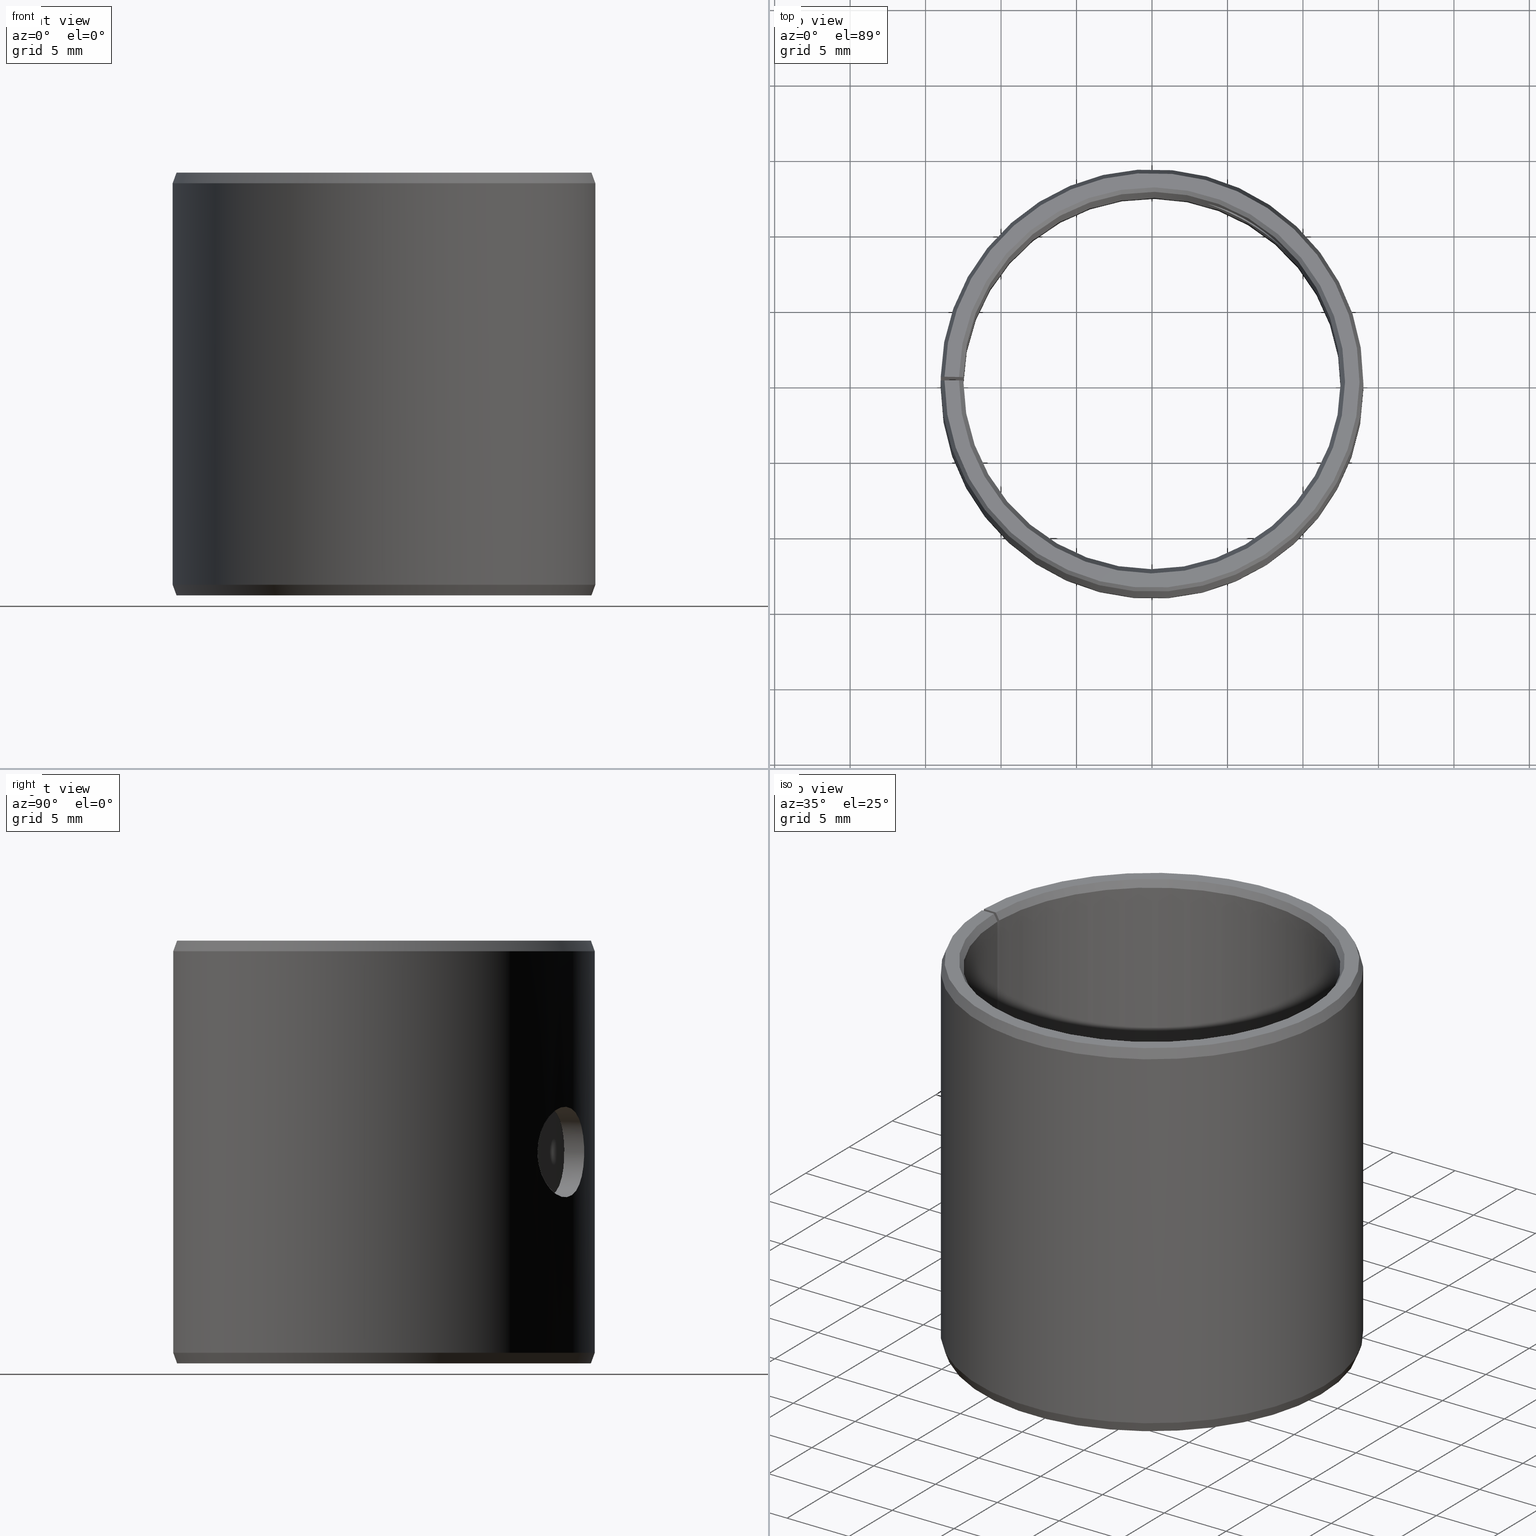
[diagram: canonical four-view strip — front | top / right | iso, engineering-drawing reading convention]
A machine part, canonical four-view strip (front | top / right | iso — engineering-drawing reading convention). The complete STEP part file that produces these views, byte-faithful:
ISO-10303-21;
HEADER;
FILE_DESCRIPTION(('STEP AP203'),'1');
FILE_NAME('440-POM2528LMB.stp','2016-09-21T04:35:09',(' '),(' '),'Spatial InterOp 3D',' ',' ');
FILE_SCHEMA(('CONFIG_CONTROL_DESIGN'));
ENDSEC;
DATA;
#1=DESIGN_CONTEXT('',#51,'design');
#2=APPLICATION_PROTOCOL_DEFINITION('INTERNATIONAL STANDARD','config_control_design',1994,#51);
#3=PRODUCT_CATEGORY_RELATIONSHIP('NONE','NONE',#52,#53);
#4=DATE_AND_TIME(#54,#55);
#5=DATE_TIME_ROLE('creation_date');
#6=DATE_TIME_ROLE('classification_date');
#7=PERSON_AND_ORGANIZATION_ROLE('creator');
#8=PERSON_AND_ORGANIZATION_ROLE('design_supplier');
#9=PERSON_AND_ORGANIZATION_ROLE('classification_officer');
#10=PERSON_AND_ORGANIZATION_ROLE('design_owner');
#11=APPROVAL_PERSON_ORGANIZATION(#56,#57,#58);
#12=APPROVAL_DATE_TIME(#4,#57);
#13=CC_DESIGN_APPROVAL(#57,(#59,#60,#61));
#14=CC_DESIGN_DATE_AND_TIME_ASSIGNMENT(#4,#5,(#61));
#15=CC_DESIGN_DATE_AND_TIME_ASSIGNMENT(#4,#6,(#59));
#16=CC_DESIGN_PERSON_AND_ORGANIZATION_ASSIGNMENT(#56,#10,(#62));
#17=CC_DESIGN_PERSON_AND_ORGANIZATION_ASSIGNMENT(#56,#7,(#61));
#18=CC_DESIGN_PERSON_AND_ORGANIZATION_ASSIGNMENT(#56,#7,(#60));
#19=CC_DESIGN_PERSON_AND_ORGANIZATION_ASSIGNMENT(#56,#8,(#60));
#20=CC_DESIGN_SECURITY_CLASSIFICATION(#59,(#60));
#21=CC_DESIGN_PERSON_AND_ORGANIZATION_ASSIGNMENT(#56,#9,(#59));
#22=SHAPE_DEFINITION_REPRESENTATION(#63,#64);
#23=DESIGN_CONTEXT('',#65,'design');
#24=APPLICATION_PROTOCOL_DEFINITION('INTERNATIONAL STANDARD','config_control_design',1994,#65);
#25=PRODUCT_CATEGORY_RELATIONSHIP('NONE','NONE',#66,#67);
#26=DATE_AND_TIME(#68,#69);
#27=DATE_TIME_ROLE('creation_date');
#28=DATE_TIME_ROLE('classification_date');
#29=PERSON_AND_ORGANIZATION_ROLE('creator');
#30=PERSON_AND_ORGANIZATION_ROLE('design_supplier');
#31=PERSON_AND_ORGANIZATION_ROLE('classification_officer');
#32=PERSON_AND_ORGANIZATION_ROLE('design_owner');
#33=APPROVAL_PERSON_ORGANIZATION(#70,#71,#72);
#34=APPROVAL_DATE_TIME(#26,#71);
#35=CC_DESIGN_APPROVAL(#71,(#73,#74,#75));
#36=CC_DESIGN_DATE_AND_TIME_ASSIGNMENT(#26,#27,(#75));
#37=CC_DESIGN_DATE_AND_TIME_ASSIGNMENT(#26,#28,(#73));
#38=CC_DESIGN_PERSON_AND_ORGANIZATION_ASSIGNMENT(#70,#32,(#76));
#39=CC_DESIGN_PERSON_AND_ORGANIZATION_ASSIGNMENT(#70,#29,(#75));
#40=CC_DESIGN_PERSON_AND_ORGANIZATION_ASSIGNMENT(#70,#29,(#74));
#41=CC_DESIGN_PERSON_AND_ORGANIZATION_ASSIGNMENT(#70,#30,(#74));
#42=CC_DESIGN_SECURITY_CLASSIFICATION(#73,(#74));
#43=CC_DESIGN_PERSON_AND_ORGANIZATION_ASSIGNMENT(#70,#31,(#73));
#44=CONTEXT_DEPENDENT_SHAPE_REPRESENTATION(#77,#78);
#45=SHAPE_DEFINITION_REPRESENTATION(#79,#80);
#46=SHAPE_REPRESENTATION_RELATIONSHIP('NONE','NONE',#80,#81);
#47= (GEOMETRIC_REPRESENTATION_CONTEXT(3)GLOBAL_UNCERTAINTY_ASSIGNED_CONTEXT((#84))GLOBAL_UNIT_ASSIGNED_CONTEXT((#86,#87,#88))REPRESENTATION_CONTEXT('NONE','WORKSPACE'));
#51=APPLICATION_CONTEXT('CONFIGURATION CONTROLLED 3D DESIGNS OF MECHANICAL PARTS AND ASSEMBLIES');
#52=PRODUCT_CATEGORY('part','NONE');
#53=PRODUCT_RELATED_PRODUCT_CATEGORY('detail',' ',(#62));
#54=CALENDAR_DATE(2016,21,8);
#55=LOCAL_TIME(6,35,9.0,#90);
#56=PERSON_AND_ORGANIZATION(#91,#92);
#57=APPROVAL(#93,'SOLID MODEL');
#58=APPROVAL_ROLE('APPROVED');
#59=SECURITY_CLASSIFICATION('','',#94);
#60=PRODUCT_DEFINITION_FORMATION_WITH_SPECIFIED_SOURCE(' ','NONE',#62,.NOT_KNOWN.);
#61=PRODUCT_DEFINITION('NONE','NONE',#60,#1);
#62=PRODUCT('','','PART--DESC',(#95));
#63=PRODUCT_DEFINITION_SHAPE('NONE','NONE',#61);
#64=SHAPE_REPRESENTATION('',(#96,#97),#98);
#65=APPLICATION_CONTEXT('CONFIGURATION CONTROLLED 3D DESIGNS OF MECHANICAL PARTS AND ASSEMBLIES');
#66=PRODUCT_CATEGORY('part','NONE');
#67=PRODUCT_RELATED_PRODUCT_CATEGORY('detail',' ',(#76));
#68=CALENDAR_DATE(2016,21,8);
#69=LOCAL_TIME(6,35,9.0,#99);
#70=PERSON_AND_ORGANIZATION(#100,#101);
#71=APPROVAL(#102,'SOLID MODEL');
#72=APPROVAL_ROLE('APPROVED');
#73=SECURITY_CLASSIFICATION('','',#103);
#74=PRODUCT_DEFINITION_FORMATION_WITH_SPECIFIED_SOURCE(' ','NONE',#76,.NOT_KNOWN.);
#75=PRODUCT_DEFINITION('440-POM2528LMB','440-POM2528LMB',#74,#23);
#76=PRODUCT('440-POM2528LMB','440-POM2528LMB','PART-440-POM2528LMB-DESC',(#104));
#77=(REPRESENTATION_RELATIONSHIP('','',#80,#64)REPRESENTATION_RELATIONSHIP_WITH_TRANSFORMATION(#107)SHAPE_REPRESENTATION_RELATIONSHIP());
#78=PRODUCT_DEFINITION_SHAPE('NAUO-PROD-DEF','NAUO-PROD-DEF',#109);
#79=PRODUCT_DEFINITION_SHAPE('NONE','NONE',#75);
#80=SHAPE_REPRESENTATION('440-POM2528LMB',(#96),#98);
#81=ADVANCED_BREP_SHAPE_REPRESENTATION('',(#110),#47);
#84=UNCERTAINTY_MEASURE_WITH_UNIT(LENGTH_MEASURE(1.0E-006),#86,'','');
#86= (CONVERSION_BASED_UNIT('METRE',#113)LENGTH_UNIT()NAMED_UNIT(#116));
#87= (NAMED_UNIT(#118)PLANE_ANGLE_UNIT()SI_UNIT($,.RADIAN.));
#88= (NAMED_UNIT(#118)SOLID_ANGLE_UNIT()SI_UNIT($,.STERADIAN.));
#90=COORDINATED_UNIVERSAL_TIME_OFFSET(1,0,.AHEAD.);
#91=PERSON('','UNSPECIFIED',$,$,$,$);
#92=ORGANIZATION('UNSPECIFIED','UNSPECIFIED','UNSPECIFIED');
#93=APPROVAL_STATUS('approved');
#94=SECURITY_CLASSIFICATION_LEVEL('unclassified');
#95=MECHANICAL_CONTEXT('',#51,'mechanical');
#96=AXIS2_PLACEMENT_3D('',#124,#125,#126);
#97=AXIS2_PLACEMENT_3D('',#127,#128,#129);
#98= (GEOMETRIC_REPRESENTATION_CONTEXT(3)GLOBAL_UNCERTAINTY_ASSIGNED_CONTEXT((#132))GLOBAL_UNIT_ASSIGNED_CONTEXT((#134,#135,#136))REPRESENTATION_CONTEXT('NONE','WORKSPACE'));
#99=COORDINATED_UNIVERSAL_TIME_OFFSET(1,0,.AHEAD.);
#100=PERSON('','UNSPECIFIED',$,$,$,$);
#101=ORGANIZATION('UNSPECIFIED','UNSPECIFIED','UNSPECIFIED');
#102=APPROVAL_STATUS('approved');
#103=SECURITY_CLASSIFICATION_LEVEL('unclassified');
#104=MECHANICAL_CONTEXT('',#65,'mechanical');
#107=ITEM_DEFINED_TRANSFORMATION('','',#96,#97);
#109=NEXT_ASSEMBLY_USAGE_OCCURRENCE('440-POM2528LMB','440-POM2528LMB','440-POM2528LMB',#61,#75,$);
#110=MANIFOLD_SOLID_BREP('',#138);
#113=LENGTH_MEASURE_WITH_UNIT(LENGTH_MEASURE(1.0),#139);
#116=DIMENSIONAL_EXPONENTS(1.0,0.0,0.0,0.0,0.0,0.0,0.0);
#118=DIMENSIONAL_EXPONENTS(0.0,0.0,0.0,0.0,0.0,0.0,0.0);
#124=CARTESIAN_POINT('',(0.0,0.0,0.0));
#125=DIRECTION('',(0.0,0.0,1.0));
#126=DIRECTION('',(1.0,0.0,0.0));
#127=CARTESIAN_POINT('',(0.0,0.0,0.0));
#128=DIRECTION('',(5.48707263966374E-016,-5.48707263966376E-016,1.0));
#129=DIRECTION('',(1.39349996950756E-015,1.0,5.48707263966375E-016));
#132=UNCERTAINTY_MEASURE_WITH_UNIT(LENGTH_MEASURE(1.0E-006),#134,'','');
#134= (CONVERSION_BASED_UNIT('METRE',#142)LENGTH_UNIT()NAMED_UNIT(#145));
#135= (NAMED_UNIT(#147)PLANE_ANGLE_UNIT()SI_UNIT($,.RADIAN.));
#136= (NAMED_UNIT(#147)SOLID_ANGLE_UNIT()SI_UNIT($,.STERADIAN.));
#138=CLOSED_SHELL('',(#153,#154,#155,#156,#157,#158,#159,#160,#161,#162,#163));
#139= (NAMED_UNIT(#116)LENGTH_UNIT()SI_UNIT($,.METRE.));
#142=LENGTH_MEASURE_WITH_UNIT(LENGTH_MEASURE(1.0),#165);
#145=DIMENSIONAL_EXPONENTS(1.0,0.0,0.0,0.0,0.0,0.0,0.0);
#147=DIMENSIONAL_EXPONENTS(0.0,0.0,0.0,0.0,0.0,0.0,0.0);
#153=ADVANCED_FACE('',(#166),#167,.F.);
#154=ADVANCED_FACE('',(#168),#169,.T.);
#155=ADVANCED_FACE('',(#170),#171,.T.);
#156=ADVANCED_FACE('',(#172),#173,.T.);
#157=ADVANCED_FACE('',(#174),#175,.T.);
#158=ADVANCED_FACE('',(#176),#177,.F.);
#159=ADVANCED_FACE('',(#178),#179,.T.);
#160=ADVANCED_FACE('',(#180),#181,.F.);
#161=ADVANCED_FACE('',(#182,#183),#184,.F.);
#162=ADVANCED_FACE('',(#185,#186),#187,.T.);
#163=ADVANCED_FACE('',(#188,#189),#190,.F.);
#165= (NAMED_UNIT(#145)LENGTH_UNIT()SI_UNIT($,.METRE.));
#166=FACE_OUTER_BOUND('',#192,.T.);
#167=CONICAL_SURFACE('',#193,0.0125,0.52359877559829);
#168=FACE_OUTER_BOUND('',#194,.T.);
#169=PLANE('',#195);
#170=FACE_OUTER_BOUND('',#196,.T.);
#171=CONICAL_SURFACE('',#197,0.0137452208360137,0.349065850398869);
#172=FACE_OUTER_BOUND('',#198,.T.);
#173=CONICAL_SURFACE('',#199,0.014,0.349065850398869);
#174=FACE_OUTER_BOUND('',#200,.T.);
#175=PLANE('',#201);
#176=FACE_OUTER_BOUND('',#202,.T.);
#177=CONICAL_SURFACE('',#203,0.0127886751345948,0.523598775598298);
#178=FACE_OUTER_BOUND('',#204,.T.);
#179=PLANE('',#205);
#180=FACE_OUTER_BOUND('',#206,.T.);
#181=PLANE('',#207);
#182=FACE_OUTER_BOUND('',#208,.T.);
#183=FACE_BOUND('',#209,.T.);
#184=CYLINDRICAL_SURFACE('',#210,0.0125);
#185=FACE_OUTER_BOUND('',#211,.T.);
#186=FACE_BOUND('',#212,.T.);
#187=CYLINDRICAL_SURFACE('',#213,0.014);
#188=FACE_OUTER_BOUND('',#214,.T.);
#189=FACE_OUTER_BOUND('',#215,.T.);
#190=CYLINDRICAL_SURFACE('',#216,0.003);
#192=EDGE_LOOP('',(#217,#218,#219,#220));
#193=AXIS2_PLACEMENT_3D('',#221,#222,#223);
#194=EDGE_LOOP('',(#224,#225,#226,#227));
#195=AXIS2_PLACEMENT_3D('',#228,#229,#230);
#196=EDGE_LOOP('',(#231,#232,#233,#234));
#197=AXIS2_PLACEMENT_3D('',#235,#236,#237);
#198=EDGE_LOOP('',(#238,#239,#240,#241));
#199=AXIS2_PLACEMENT_3D('',#242,#243,#244);
#200=EDGE_LOOP('',(#245,#246,#247,#248));
#201=AXIS2_PLACEMENT_3D('',#249,#250,#251);
#202=EDGE_LOOP('',(#252,#253,#254,#255));
#203=AXIS2_PLACEMENT_3D('',#256,#257,#258);
#204=EDGE_LOOP('',(#259,#260,#261,#262,#263,#264,#265,#266));
#205=AXIS2_PLACEMENT_3D('',#267,#268,#269);
#206=EDGE_LOOP('',(#270,#271,#272,#273,#274,#275,#276,#277));
#207=AXIS2_PLACEMENT_3D('',#278,#279,#280);
#208=EDGE_LOOP('',(#281,#282,#283,#284));
#209=EDGE_LOOP('',(#285));
#210=AXIS2_PLACEMENT_3D('',#286,#287,#288);
#211=EDGE_LOOP('',(#289,#290,#291,#292));
#212=EDGE_LOOP('',(#293));
#213=AXIS2_PLACEMENT_3D('',#294,#295,#296);
#214=EDGE_LOOP('',(#297));
#215=EDGE_LOOP('',(#298));
#216=AXIS2_PLACEMENT_3D('',#299,#300,#301);
#217=ORIENTED_EDGE('',*,*,#302,.T.);
#218=ORIENTED_EDGE('',*,*,#303,.F.);
#219=ORIENTED_EDGE('',*,*,#304,.F.);
#220=ORIENTED_EDGE('',*,*,#305,.T.);
#221=CARTESIAN_POINT('',(-6.93889390390723E-018,-6.93889390390723E-018,0.0005));
#222=DIRECTION('',(6.12323399573677E-017,-0.0,-1.0));
#223=DIRECTION('',(-1.0,0.0,-6.12323399573677E-017));
#224=ORIENTED_EDGE('',*,*,#306,.T.);
#225=ORIENTED_EDGE('',*,*,#307,.F.);
#226=ORIENTED_EDGE('',*,*,#302,.F.);
#227=ORIENTED_EDGE('',*,*,#308,.T.);
#228=CARTESIAN_POINT('',(0.000223193156243324,0.0127867273574285,-4.05434694050256E-020));
#229=DIRECTION('',(6.12323399573677E-017,0.0,-1.0));
#230=DIRECTION('',(-1.0,0.0,-6.12323399573677E-017));
#231=ORIENTED_EDGE('',*,*,#309,.T.);
#232=ORIENTED_EDGE('',*,*,#310,.F.);
#233=ORIENTED_EDGE('',*,*,#306,.F.);
#234=ORIENTED_EDGE('',*,*,#311,.T.);
#235=CARTESIAN_POINT('',(-6.93889390390723E-018,-6.93889390390723E-018,-1.80555932286303E-035));
#236=DIRECTION('',(-6.12323399573677E-017,0.0,1.0));
#237=DIRECTION('',(1.0,0.0,6.12323399573677E-017));
#238=ORIENTED_EDGE('',*,*,#312,.T.);
#239=ORIENTED_EDGE('',*,*,#313,.F.);
#240=ORIENTED_EDGE('',*,*,#314,.F.);
#241=ORIENTED_EDGE('',*,*,#315,.T.);
#242=CARTESIAN_POINT('',(-8.67361737988404E-018,-6.93889390390723E-018,0.0273));
#243=DIRECTION('',(6.12323399573677E-017,-0.0,-1.0));
#244=DIRECTION('',(-1.0,0.0,-6.12323399573677E-017));
#245=ORIENTED_EDGE('',*,*,#316,.T.);
#246=ORIENTED_EDGE('',*,*,#317,.T.);
#247=ORIENTED_EDGE('',*,*,#318,.F.);
#248=ORIENTED_EDGE('',*,*,#312,.F.);
#249=CARTESIAN_POINT('',(0.00023988718060032,0.0137431273723038,0.028));
#250=DIRECTION('',(-6.12323399573677E-017,0.0,1.0));
#251=DIRECTION('',(1.0,0.0,6.12323399573677E-017));
#252=ORIENTED_EDGE('',*,*,#319,.T.);
#253=ORIENTED_EDGE('',*,*,#320,.F.);
#254=ORIENTED_EDGE('',*,*,#317,.F.);
#255=ORIENTED_EDGE('',*,*,#321,.T.);
#256=CARTESIAN_POINT('',(-8.67361737988404E-018,-6.93889390390723E-018,0.028));
#257=DIRECTION('',(-6.12323399573677E-017,0.0,1.0));
#258=DIRECTION('',(1.0,0.0,6.12323399573677E-017));
#259=ORIENTED_EDGE('',*,*,#320,.T.);
#260=ORIENTED_EDGE('',*,*,#322,.T.);
#261=ORIENTED_EDGE('',*,*,#303,.T.);
#262=ORIENTED_EDGE('',*,*,#307,.T.);
#263=ORIENTED_EDGE('',*,*,#310,.T.);
#264=ORIENTED_EDGE('',*,*,#323,.T.);
#265=ORIENTED_EDGE('',*,*,#313,.T.);
#266=ORIENTED_EDGE('',*,*,#318,.T.);
#267=CARTESIAN_POINT('',(-6.93889390390723E-018,-0.014,0.0));
#268=DIRECTION('',(1.0,0.0,0.0));
#269=DIRECTION('',(0.0,0.0,-1.0));
#270=ORIENTED_EDGE('',*,*,#321,.F.);
#271=ORIENTED_EDGE('',*,*,#316,.F.);
#272=ORIENTED_EDGE('',*,*,#315,.F.);
#273=ORIENTED_EDGE('',*,*,#324,.F.);
#274=ORIENTED_EDGE('',*,*,#311,.F.);
#275=ORIENTED_EDGE('',*,*,#308,.F.);
#276=ORIENTED_EDGE('',*,*,#305,.F.);
#277=ORIENTED_EDGE('',*,*,#325,.F.);
#278=CARTESIAN_POINT('',(-0.000244333690121977,-0.0139978677321895,-1.49611235765866E-020));
#279=DIRECTION('',(0.999847695156391,-0.0174524064372836,-9.3259819610035E-021));
#280=DIRECTION('',(9.32598196100733E-021,1.0686516840419E-018,-1.0));
#281=ORIENTED_EDGE('',*,*,#304,.T.);
#282=ORIENTED_EDGE('',*,*,#322,.F.);
#283=ORIENTED_EDGE('',*,*,#319,.F.);
#284=ORIENTED_EDGE('',*,*,#325,.T.);
#285=ORIENTED_EDGE('',*,*,#326,.T.);
#286=CARTESIAN_POINT('',(-6.93889390390723E-018,-6.93889390390723E-018,0.0));
#287=DIRECTION('',(6.12323399573677E-017,0.0,-1.0));
#288=DIRECTION('',(-1.0,0.0,-6.12323399573677E-017));
#289=ORIENTED_EDGE('',*,*,#314,.T.);
#290=ORIENTED_EDGE('',*,*,#323,.F.);
#291=ORIENTED_EDGE('',*,*,#309,.F.);
#292=ORIENTED_EDGE('',*,*,#324,.T.);
#293=ORIENTED_EDGE('',*,*,#327,.T.);
#294=CARTESIAN_POINT('',(-6.93889390390723E-018,-6.93889390390723E-018,0.0));
#295=DIRECTION('',(6.12323399573677E-017,0.0,-1.0));
#296=DIRECTION('',(-1.0,0.0,-6.12323399573677E-017));
#297=ORIENTED_EDGE('',*,*,#326,.F.);
#298=ORIENTED_EDGE('',*,*,#327,.F.);
#299=CARTESIAN_POINT('',(0.00771450570633519,-0.00463534267416353,0.014));
#300=DIRECTION('',(0.857167300703911,-0.515038074907061,0.0));
#301=DIRECTION('',(-0.515038074907061,-0.857167300703911,0.0));
#302=EDGE_CURVE('',#328,#329,#330,.T.);
#303=EDGE_CURVE('',#331,#329,#332,.T.);
#304=EDGE_CURVE('',#333,#331,#334,.T.);
#305=EDGE_CURVE('',#333,#328,#335,.T.);
#306=EDGE_CURVE('',#336,#337,#338,.T.);
#307=EDGE_CURVE('',#329,#337,#339,.T.);
#308=EDGE_CURVE('',#328,#336,#340,.T.);
#309=EDGE_CURVE('',#341,#342,#343,.T.);
#310=EDGE_CURVE('',#337,#342,#344,.T.);
#311=EDGE_CURVE('',#336,#341,#345,.T.);
#312=EDGE_CURVE('',#346,#347,#348,.T.);
#313=EDGE_CURVE('',#349,#347,#350,.T.);
#314=EDGE_CURVE('',#351,#349,#352,.T.);
#315=EDGE_CURVE('',#351,#346,#353,.T.);
#316=EDGE_CURVE('',#346,#354,#355,.T.);
#317=EDGE_CURVE('',#354,#356,#357,.T.);
#318=EDGE_CURVE('',#347,#356,#358,.T.);
#319=EDGE_CURVE('',#359,#360,#361,.T.);
#320=EDGE_CURVE('',#356,#360,#362,.T.);
#321=EDGE_CURVE('',#354,#359,#363,.T.);
#322=EDGE_CURVE('',#360,#331,#364,.T.);
#323=EDGE_CURVE('',#342,#349,#365,.T.);
#324=EDGE_CURVE('',#341,#351,#366,.T.);
#325=EDGE_CURVE('',#359,#333,#367,.T.);
#326=EDGE_CURVE('',#368,#368,#369,.T.);
#327=EDGE_CURVE('',#370,#370,#371,.T.);
#328=VERTEX_POINT('',#372);
#329=VERTEX_POINT('',#373);
#330=CIRCLE('',#374,0.0127886751345948);
#331=VERTEX_POINT('',#375);
#332=LINE('',#376,#377);
#333=VERTEX_POINT('',#378);
#334=CIRCLE('',#379,0.0125);
#335=LINE('',#380,#381);
#336=VERTEX_POINT('',#382);
#337=VERTEX_POINT('',#383);
#338=CIRCLE('',#384,0.0137452208360137);
#339=LINE('',#385,#386);
#340=LINE('',#387,#388);
#341=VERTEX_POINT('',#389);
#342=VERTEX_POINT('',#390);
#343=CIRCLE('',#391,0.014);
#344=LINE('',#392,#393);
#345=LINE('',#394,#395);
#346=VERTEX_POINT('',#396);
#347=VERTEX_POINT('',#397);
#348=CIRCLE('',#398,0.0137452208360137);
#349=VERTEX_POINT('',#399);
#350=LINE('',#400,#401);
#351=VERTEX_POINT('',#402);
#352=CIRCLE('',#403,0.014);
#353=LINE('',#404,#405);
#354=VERTEX_POINT('',#406);
#355=LINE('',#407,#408);
#356=VERTEX_POINT('',#409);
#357=CIRCLE('',#410,0.0127886751345948);
#358=LINE('',#411,#412);
#359=VERTEX_POINT('',#413);
#360=VERTEX_POINT('',#414);
#361=CIRCLE('',#415,0.0125);
#362=LINE('',#416,#417);
#363=LINE('',#418,#419);
#364=LINE('',#420,#421);
#365=LINE('',#422,#423);
#366=LINE('',#424,#425);
#367=LINE('',#426,#427);
#368=VERTEX_POINT('',#428);
#369=B_SPLINE_CURVE_WITH_KNOTS('',3,(#429,#430,#431,#432,#433,#434,#435,#436,#437,#438,#439,#440,#441,#442,#443,#444,#445,#446,#447,#448,#449,#450,#451,#452,#453,#454,#455,#456,#457,#458,#459,#460,#461,#462,#463,#464,#465,#466,#467,#468,#469,#470,#471,#472,#473,#474,#475,#476,#477,#478,#479,#480,#481,#482,#483,#484,#485,#486,#487,#488,#489,#490,#491,#492),.UNSPECIFIED.,.T.,.F.,(2,2,2,2,2,2,2,2,2,2,2,2,2,2,2,2,2,2,2,2,2,2,2,2,2,2,2,2,2,2,2,2,2,2),(-0.00058828103489859,0.0,0.00058828103489859,0.00117656206979718,0.00176484310469577,0.00235312413959436,0.00294140517449295,0.00352968620939154,0.00411796724429013,0.00470624827918872,0.00529452931408731,0.0058828103489859,0.0064710913838845,0.00705937241878309,0.00764765345368168,0.00823593448858027,0.00882421552347886,0.00941249655837745,0.0105890586281746,0.0111773396630732,0.0117656206979718,0.0123539017328704,0.012942182767769,0.0135304638026676,0.0141187448375662,0.0147070258724648,0.0152953069073634,0.0158835879422619,0.0164718689771605,0.0170601500120591,0.0176484310469577,0.0182367120818563,0.0188249931167549,0.0194132741516535),.UNSPECIFIED.);
#370=VERTEX_POINT('',#493);
#371=B_SPLINE_CURVE_WITH_KNOTS('',3,(#494,#495,#496,#497,#498,#499,#500,#501,#502,#503,#504,#505,#506,#507,#508,#509,#510,#511,#512,#513,#514,#515,#516,#517,#518,#519,#520,#521,#522,#523,#524,#525,#526,#527,#528,#529,#530,#531,#532,#533,#534,#535,#536,#537,#538,#539,#540,#541,#542,#543,#544,#545,#546,#547,#548,#549,#550,#551,#552,#553),.UNSPECIFIED.,.T.,.F.,(2,2,2,2,2,2,2,2,2,2,2,2,2,2,2,2,2,2,2,2,2,2,2,2,2,2,2,2,2,2,2,2),(-0.000587838766358766,0.0,0.000587838766358778,0.00117567753271756,0.00176351629907634,0.00235135506543511,0.00293919383179388,0.00352703259815266,0.00411487136451143,0.00470271013087021,0.00529054889722898,0.00587838766358775,0.00646622642994653,0.0070540651963053,0.00764190396266408,0.00822974272902285,0.00881758149538162,0.00940542026174039,0.0105810977944579,0.0111689365608167,0.0117567753271755,0.0123446140935342,0.012932452859893,0.0141081303926105,0.0146959691589693,0.0152838079253281,0.0158716466916868,0.0164594854580456,0.0176351629907631,0.0182230017571219,0.0188108405234807,0.0193986792898394),.UNSPECIFIED.);
#372=CARTESIAN_POINT('',(0.000223193156243324,0.0127867273574285,-9.47535780293009E-020));
#373=CARTESIAN_POINT('',(-6.93889390390723E-018,0.0127886751345948,-1.0842021724855E-019));
#374=AXIS2_PLACEMENT_3D('',#554,#555,#556);
#375=CARTESIAN_POINT('',(-6.93889390390723E-018,0.0125,0.0005));
#376=CARTESIAN_POINT('',(-6.93889390390723E-018,0.0125,0.0005));
#377=VECTOR('',#557,1.0);
#378=CARTESIAN_POINT('',(0.000218155080466037,0.0124980961894549,0.0005));
#379=AXIS2_PLACEMENT_3D('',#558,#559,#560);
#380=CARTESIAN_POINT('',(0.000218155080466037,0.0124980961894549,0.0005));
#381=VECTOR('',#561,1.0);
#382=CARTESIAN_POINT('',(0.000239887180600323,0.0137431273723039,1.46888533939338E-020));
#383=CARTESIAN_POINT('',(-6.93889390390723E-018,0.0137452208360137,0.0));
#384=AXIS2_PLACEMENT_3D('',#562,#563,#564);
#385=CARTESIAN_POINT('',(-6.93889390390723E-018,0.0127886751345948,-1.105668605814E-019));
#386=VECTOR('',#565,1.0);
#387=CARTESIAN_POINT('',(0.000223193156243324,0.0127867273574285,-9.6900221362151E-020));
#388=VECTOR('',#566,1.0);
#389=CARTESIAN_POINT('',(0.000244333690121964,0.0139978677321895,0.0007));
#390=CARTESIAN_POINT('',(-6.93889390390723E-018,0.014,0.0007));
#391=AXIS2_PLACEMENT_3D('',#567,#568,#569);
#392=CARTESIAN_POINT('',(-6.93889390390723E-018,0.0137452208360137,0.0));
#393=VECTOR('',#570,1.0);
#394=CARTESIAN_POINT('',(0.000239887180600323,0.0137431273723039,1.46888533939338E-020));
#395=VECTOR('',#571,1.0);
#396=CARTESIAN_POINT('',(0.00023988718060032,0.0137431273723038,0.028));
#397=CARTESIAN_POINT('',(-8.67361737988404E-018,0.0137452208360136,0.028));
#398=AXIS2_PLACEMENT_3D('',#572,#573,#574);
#399=CARTESIAN_POINT('',(-8.67361737988404E-018,0.014,0.0273));
#400=CARTESIAN_POINT('',(-8.67361737988404E-018,0.014,0.0273));
#401=VECTOR('',#575,1.0);
#402=CARTESIAN_POINT('',(0.000244333690121963,0.0139978677321895,0.0273));
#403=AXIS2_PLACEMENT_3D('',#576,#577,#578);
#404=CARTESIAN_POINT('',(0.000244333690121963,0.0139978677321895,0.0273));
#405=VECTOR('',#579,1.0);
#406=CARTESIAN_POINT('',(0.000223193156243322,0.0127867273574285,0.028));
#407=CARTESIAN_POINT('',(0.00023988718060032,0.0137431273723038,0.028));
#408=VECTOR('',#580,1.0);
#409=CARTESIAN_POINT('',(-8.67361737988404E-018,0.0127886751345948,0.028));
#410=AXIS2_PLACEMENT_3D('',#581,#582,#583);
#411=CARTESIAN_POINT('',(-8.67361737988404E-018,0.0137452208360136,0.028));
#412=VECTOR('',#584,1.0);
#413=CARTESIAN_POINT('',(0.000218155080466036,0.0124980961894549,0.0275));
#414=CARTESIAN_POINT('',(-8.67361737988404E-018,0.0125,0.0275));
#415=AXIS2_PLACEMENT_3D('',#585,#586,#587);
#416=CARTESIAN_POINT('',(-8.67361737988404E-018,0.0127886751345948,0.028));
#417=VECTOR('',#588,1.0);
#418=CARTESIAN_POINT('',(0.000223193156243322,0.0127867273574285,0.028));
#419=VECTOR('',#589,1.0);
#420=CARTESIAN_POINT('',(-8.67361737988404E-018,0.0125,0.0275));
#421=VECTOR('',#590,1.0);
#422=CARTESIAN_POINT('',(-6.93889390390723E-018,0.014,0.0007));
#423=VECTOR('',#591,1.0);
#424=CARTESIAN_POINT('',(0.000244333690121964,0.0139978677321895,0.0007));
#425=VECTOR('',#592,1.0);
#426=CARTESIAN_POINT('',(0.000218155080466036,0.0124980961894549,0.0275));
#427=VECTOR('',#593,1.0);
#428=CARTESIAN_POINT('',(0.00885632047490393,-0.00882131439445378,0.014));
#429=CARTESIAN_POINT('',(0.00885632047490393,-0.00882131439445378,0.0141989762923684));
#430=CARTESIAN_POINT('',(0.00885632047490393,-0.00882131439445378,0.0138010237076316));
#431=CARTESIAN_POINT('',(0.00887060801508699,-0.00880703515908165,0.0136055235399371));
#432=CARTESIAN_POINT('',(0.00892599499023425,-0.00875089528476595,0.01322114284023));
#433=CARTESIAN_POINT('',(0.00896779204067812,-0.00870831130558218,0.0130302265779596));
#434=CARTESIAN_POINT('',(0.00907484727826891,-0.00859669278012629,0.0126673101795688));
#435=CARTESIAN_POINT('',(0.00913967868926069,-0.00852810696772537,0.0124952992928667));
#436=CARTESIAN_POINT('',(0.00928976897487818,-0.00836436054873789,0.0121697620452511));
#437=CARTESIAN_POINT('',(0.00937545269464949,-0.00826864229251243,0.0120162216031475));
#438=CARTESIAN_POINT('',(0.00955810451651012,-0.00805681057507278,0.0117406385914374));
#439=CARTESIAN_POINT('',(0.00965584091228449,-0.00793990352391979,0.0116167070696174));
#440=CARTESIAN_POINT('',(0.00986245049769695,-0.00768175773329114,0.0113973461402697));
#441=CARTESIAN_POINT('',(0.00996895282431969,-0.00754339318071887,0.0113046173084922));
#442=CARTESIAN_POINT('',(0.0101833126175242,-0.00725140987851323,0.0111547345346444));
#443=CARTESIAN_POINT('',(0.0102926883023462,-0.00709564698354434,0.0110967184624443));
#444=CARTESIAN_POINT('',(0.0105079342040151,-0.00677281015298865,0.0110193536365746));
#445=CARTESIAN_POINT('',(0.0106124294144885,-0.00660794509533711,0.0110001216828471));
#446=CARTESIAN_POINT('',(0.0108148478169199,-0.00627117717476989,0.0109998794572809));
#447=CARTESIAN_POINT('',(0.0109135801933662,-0.00609762006583403,0.0110195332613324));
#448=CARTESIAN_POINT('',(0.0110965180618742,-0.00575799357474428,0.0110964029251582));
#449=CARTESIAN_POINT('',(0.0111816475900836,-0.00559054477060253,0.0111532697272991));
#450=CARTESIAN_POINT('',(0.0113403842774647,-0.00526109476253425,0.0113042540540853));
#451=CARTESIAN_POINT('',(0.0114129447817266,-0.00510112201082135,0.0113978392130746));
#452=CARTESIAN_POINT('',(0.0115425146926919,-0.00480074045632727,0.0116146543270243));
#453=CARTESIAN_POINT('',(0.0116005903623565,-0.00465791971312209,0.0117395049627046));
#454=CARTESIAN_POINT('',(0.0117027872337349,-0.00439484741157424,0.012017604453523));
#455=CARTESIAN_POINT('',(0.0117461510535234,-0.00427670620915678,0.0121682598435595));
#456=CARTESIAN_POINT('',(0.0118201284333513,-0.00406778126141385,0.0124924770510523));
#457=CARTESIAN_POINT('',(0.011850935043456,-0.00397634096719326,0.0126681454282703));
#458=CARTESIAN_POINT('',(0.0118991014398589,-0.00382979553181898,0.0130302835775614));
#459=CARTESIAN_POINT('',(0.0119167805745733,-0.00377384767185728,0.0132172788549418));
#460=CARTESIAN_POINT('',(0.0119405815194949,-0.00369785052283178,0.0136033795153728));
#461=CARTESIAN_POINT('',(0.0119465236521878,-0.00367839267004559,0.0138025411204065));
#462=CARTESIAN_POINT('',(0.0119465992239134,-0.00367814722550707,0.0143911054590032));
#463=CARTESIAN_POINT('',(0.0119232522966096,-0.00375628047129552,0.0147872612740309));
#464=CARTESIAN_POINT('',(0.0118513342251184,-0.00397514454598179,0.0153292880777202));
#465=CARTESIAN_POINT('',(0.0118206911688308,-0.00406615574208262,0.0155047289113397));
#466=CARTESIAN_POINT('',(0.011746490928873,-0.00427578216068718,0.0158305744033146));
#467=CARTESIAN_POINT('',(0.0117031367488794,-0.00439388828283013,0.0159811469836276));
#468=CARTESIAN_POINT('',(0.011601620184016,-0.00465532739029126,0.0162579861182458));
#469=CARTESIAN_POINT('',(0.0115430961704468,-0.00479934123048275,0.0163841987774277));
#470=CARTESIAN_POINT('',(0.0114135849027942,-0.00509968872711895,0.0166012618947197));
#471=CARTESIAN_POINT('',(0.0113421123644622,-0.0052573785112937,0.0166937608573922));
#472=CARTESIAN_POINT('',(0.0111832198078767,-0.00558740873999862,0.0168455692219099));
#473=CARTESIAN_POINT('',(0.0110973288083126,-0.00575640766381113,0.0169030737531293));
#474=CARTESIAN_POINT('',(0.0109151161514992,-0.0060948482566074,0.0169800016490617));
#475=CARTESIAN_POINT('',(0.0108173736849522,-0.00626686561599889,0.0169998891866558));
#476=CARTESIAN_POINT('',(0.0106135314215664,-0.00660621895279797,0.0170001098809488));
#477=CARTESIAN_POINT('',(0.0105089759240249,-0.00677115951355081,0.0169808202130408));
#478=CARTESIAN_POINT('',(0.0102951372783323,-0.00709206067021261,0.0169043590850992));
#479=CARTESIAN_POINT('',(0.0101848791362311,-0.00724922664872761,0.0168462249499299));
#480=CARTESIAN_POINT('',(0.00996975439848409,-0.00754235024764599,0.016696077516805));
#481=CARTESIAN_POINT('',(0.00986397798926059,-0.00767978968537374,0.0166040447323065));
#482=CARTESIAN_POINT('',(0.00965780549801637,-0.00793750743915714,0.0163856057770269));
#483=CARTESIAN_POINT('',(0.0095587844422973,-0.00805600328527542,0.0162602634087785));
#484=CARTESIAN_POINT('',(0.00937619612526624,-0.0082677986893257,0.0159850229787045));
#485=CARTESIAN_POINT('',(0.00929124334120056,-0.00836273319142893,0.0158331638040696));
#486=CARTESIAN_POINT('',(0.00914011524230402,-0.00852764930176145,0.0155059161133665));
#487=CARTESIAN_POINT('',(0.00907529089706562,-0.00859622219280752,0.0153338202524727));
#488=CARTESIAN_POINT('',(0.00896859356352326,-0.00870748358291922,0.0149728596736635));
#489=CARTESIAN_POINT('',(0.00892652226065832,-0.00875035912219712,0.0147818892621642));
#490=CARTESIAN_POINT('',(0.00887061251358724,-0.00880703230783426,0.0143951288413083));
#491=CARTESIAN_POINT('',(0.00885632047490393,-0.00882131439445378,0.0141989762923684));
#492=CARTESIAN_POINT('',(0.00885632047490393,-0.00882131439445378,0.0138010237076316));
#493=CARTESIAN_POINT('',(0.0101764723198152,-0.0096145416491913,0.014));
#494=CARTESIAN_POINT('',(0.0101764723198152,-0.0096145416491913,0.0138011859365001));
#495=CARTESIAN_POINT('',(0.0101764723198152,-0.0096145416491913,0.0141988140634999));
#496=CARTESIAN_POINT('',(0.0101902650341411,-0.00960000163605004,0.0143941868848942));
#497=CARTESIAN_POINT('',(0.0102437993880451,-0.00954285633213078,0.0147783691716495));
#498=CARTESIAN_POINT('',(0.010284210463045,-0.00949952259149727,0.0149692075158694));
#499=CARTESIAN_POINT('',(0.0103879519367457,-0.00938596659244176,0.0153322071244973));
#500=CARTESIAN_POINT('',(0.010450847191623,-0.00931622383579143,0.0155042814820367));
#501=CARTESIAN_POINT('',(0.0105967371648665,-0.00914993961947067,0.015829938245281));
#502=CARTESIAN_POINT('',(0.0106802176616042,-0.00905275787846214,0.015983664033763));
#503=CARTESIAN_POINT('',(0.0108585521730745,-0.00883806082859361,0.0162594790539849));
#504=CARTESIAN_POINT('',(0.0109541407065516,-0.00871974999828462,0.0163834593384913));
#505=CARTESIAN_POINT('',(0.0111566563984231,-0.008459093134553,0.0166028045636814));
#506=CARTESIAN_POINT('',(0.0112614479554259,-0.00831940765858629,0.0166956355344842));
#507=CARTESIAN_POINT('',(0.0114727414244555,-0.00802551917635823,0.0168454586896516));
#508=CARTESIAN_POINT('',(0.011580769463396,-0.00786914137350822,0.0169033853498576));
#509=CARTESIAN_POINT('',(0.0117942889183208,-0.00754535328740534,0.0169806861599206));
#510=CARTESIAN_POINT('',(0.0118982967452887,-0.00738031594652709,0.0169998815666925));
#511=CARTESIAN_POINT('',(0.0121005314572932,-0.00704383896469589,0.0170001173511147));
#512=CARTESIAN_POINT('',(0.0121996173481959,-0.00687069848726047,0.0169805016202706));
#513=CARTESIAN_POINT('',(0.0123841677614814,-0.00653219335298094,0.016903707682941));
#514=CARTESIAN_POINT('',(0.0124704869486117,-0.00636555523917459,0.0168468953102093));
#515=CARTESIAN_POINT('',(0.0126322559424786,-0.00603816595020306,0.0166960904048311));
#516=CARTESIAN_POINT('',(0.0127068146666752,-0.0058790769002215,0.0166024245944211));
#517=CARTESIAN_POINT('',(0.0128405314551688,-0.00558098881209875,0.0163855636631531));
#518=CARTESIAN_POINT('',(0.0129007761920341,-0.00543965417907652,0.0162609026313012));
#519=CARTESIAN_POINT('',(0.0130076736262932,-0.00517883102415349,0.0159823588330525));
#520=CARTESIAN_POINT('',(0.0130533132641714,-0.00506193574406981,0.0158315303185916));
#521=CARTESIAN_POINT('',(0.0131314953360373,-0.00485551345269624,0.0155072089922736));
#522=CARTESIAN_POINT('',(0.0131642650688123,-0.00476529287753478,0.0153315684142279));
#523=CARTESIAN_POINT('',(0.01321572220727,-0.00462066851774794,0.0149691584494066));
#524=CARTESIAN_POINT('',(0.0132346931598278,-0.00456557320570977,0.0147821721278113));
#525=CARTESIAN_POINT('',(0.0132602571532514,-0.00449078411428717,0.0143964690538675));
#526=CARTESIAN_POINT('',(0.0132666741915814,-0.0044716166988359,0.0141973300710812));
#527=CARTESIAN_POINT('',(0.0132667536733888,-0.00447138088258504,0.0136090586019117));
#528=CARTESIAN_POINT('',(0.0132414830621486,-0.00454823423733294,0.0132131771066383));
#529=CARTESIAN_POINT('',(0.0131647320544529,-0.00476399590944044,0.0126712731941084));
#530=CARTESIAN_POINT('',(0.0131321790553477,-0.004853675040902,0.012495978784182));
#531=CARTESIAN_POINT('',(0.0130536746126995,-0.00506101444871998,0.0121696217869208));
#532=CARTESIAN_POINT('',(0.013008046116108,-0.00517786384280028,0.0120189473241081));
#533=CARTESIAN_POINT('',(0.0129020706836692,-0.00543655311819683,0.0117421401169605));
#534=CARTESIAN_POINT('',(0.0128412087517205,-0.00557943223744085,0.0116157147216019));
#535=CARTESIAN_POINT('',(0.0127074712537408,-0.00587765945192541,0.0113984620890828));
#536=CARTESIAN_POINT('',(0.0126341313028926,-0.00603424542581476,0.0113060285408882));
#537=CARTESIAN_POINT('',(0.0123914309908542,-0.00652579531932199,0.0110786780945265));
#538=CARTESIAN_POINT('',(0.0122052961637008,-0.00686932445999531,0.0110002594073632));
#539=CARTESIAN_POINT('',(0.0118993792687237,-0.00737861716476427,0.0109998712567188));
#540=CARTESIAN_POINT('',(0.0117952888573102,-0.00754375459057772,0.0110191616158945));
#541=CARTESIAN_POINT('',(0.0115833680123802,-0.00786528181567674,0.0110954676396412));
#542=CARTESIAN_POINT('',(0.0114744341740383,-0.00802311685039888,0.0111534883715028));
#543=CARTESIAN_POINT('',(0.0112622532479297,-0.00831833489281302,0.0113036478270771));
#544=CARTESIAN_POINT('',(0.0111583343766565,-0.00845687041319744,0.0113956513145655));
#545=CARTESIAN_POINT('',(0.0109564576745339,-0.00871682961133435,0.0116137632046476));
#546=CARTESIAN_POINT('',(0.0108593029673298,-0.00883713781568895,0.0117395008188485));
#547=CARTESIAN_POINT('',(0.0105918897025791,-0.00915913398566437,0.012152665124657));
#548=CARTESIAN_POINT('',(0.0104400819199028,-0.00932888908293525,0.0124861943867697));
#549=CARTESIAN_POINT('',(0.0102850588516749,-0.00949860173507564,0.0130274235028097));
#550=CARTESIAN_POINT('',(0.0102444141804405,-0.00954219818898076,0.0132179755436525));
#551=CARTESIAN_POINT('',(0.0101902687928687,-0.00959999948475432,0.0136050380599848));
#552=CARTESIAN_POINT('',(0.0101764723198152,-0.0096145416491913,0.0138011859365001));
#553=CARTESIAN_POINT('',(0.0101764723198152,-0.0096145416491913,0.0141988140634999));
#554=CARTESIAN_POINT('',(-6.93889390390723E-018,-6.93889390390723E-018,-1.0842021724855E-019));
#555=DIRECTION('',(6.12323399573677E-017,0.0,-1.0));
#556=DIRECTION('',(-1.0,0.0,-6.12323399573677E-017));
#557=DIRECTION('',(0.0,0.499999999999999,-0.866025403784439));
#558=CARTESIAN_POINT('',(-6.93889390390723E-018,-6.93889390390723E-018,0.0005));
#559=DIRECTION('',(6.12323399573677E-017,0.0,-1.0));
#560=DIRECTION('',(-1.0,0.0,-6.12323399573677E-017));
#561=DIRECTION('',(0.00872620321864171,0.499923847578191,-0.866025403784441));
#562=CARTESIAN_POINT('',(-6.93889390390723E-018,-6.93889390390723E-018,-1.80555932286303E-035));
#563=DIRECTION('',(6.12323399573677E-017,0.0,-1.0));
#564=DIRECTION('',(-1.0,0.0,-6.12323399573677E-017));
#565=DIRECTION('',(0.0,1.0,1.15589731277236E-016));
#566=DIRECTION('',(0.0174524064372836,0.999847695156391,1.16658382961278E-016));
#567=CARTESIAN_POINT('',(-6.93889390390723E-018,-6.93889390390723E-018,0.0007));
#568=DIRECTION('',(6.12323399573677E-017,0.0,-1.0));
#569=DIRECTION('',(-1.0,0.0,-6.12323399573677E-017));
#570=DIRECTION('',(0.0,0.34202014332567,0.939692620785908));
#571=DIRECTION('',(0.00596907455105756,0.341968052001229,0.939692620785908));
#572=CARTESIAN_POINT('',(-8.67361737988404E-018,-6.93889390390723E-018,0.028));
#573=DIRECTION('',(6.12323399573677E-017,0.0,-1.0));
#574=DIRECTION('',(-1.0,0.0,-6.12323399573677E-017));
#575=DIRECTION('',(0.0,-0.342020143325672,0.939692620785907));
#576=CARTESIAN_POINT('',(-8.67361737988404E-018,-6.93889390390723E-018,0.0273));
#577=DIRECTION('',(6.12323399573677E-017,0.0,-1.0));
#578=DIRECTION('',(-1.0,0.0,-6.12323399573677E-017));
#579=DIRECTION('',(-0.0059690745510576,-0.341968052001232,0.939692620785907));
#580=DIRECTION('',(-0.0174524064372836,-0.999847695156391,-1.0686516840419E-018));
#581=CARTESIAN_POINT('',(-8.67361737988404E-018,-6.93889390390723E-018,0.028));
#582=DIRECTION('',(6.12323399573677E-017,0.0,-1.0));
#583=DIRECTION('',(-1.0,0.0,-6.12323399573677E-017));
#584=DIRECTION('',(0.0,-1.0,0.0));
#585=CARTESIAN_POINT('',(-8.67361737988404E-018,-6.93889390390723E-018,0.0275));
#586=DIRECTION('',(6.12323399573677E-017,0.0,-1.0));
#587=DIRECTION('',(-1.0,0.0,-6.12323399573677E-017));
#588=DIRECTION('',(0.0,-0.5,-0.866025403784439));
#589=DIRECTION('',(-0.00872620321864178,-0.499923847578196,-0.866025403784439));
#590=DIRECTION('',(6.42490176287706E-017,2.56996070515082E-016,-1.0));
#591=DIRECTION('',(-6.52151682698048E-017,0.0,1.0));
#592=DIRECTION('',(-6.52145616657615E-017,6.95099384785729E-020,1.0));
#593=DIRECTION('',(6.87337580495637E-017,2.56904280483943E-016,-1.0));
ENDSEC;
END-ISO-10303-21;
